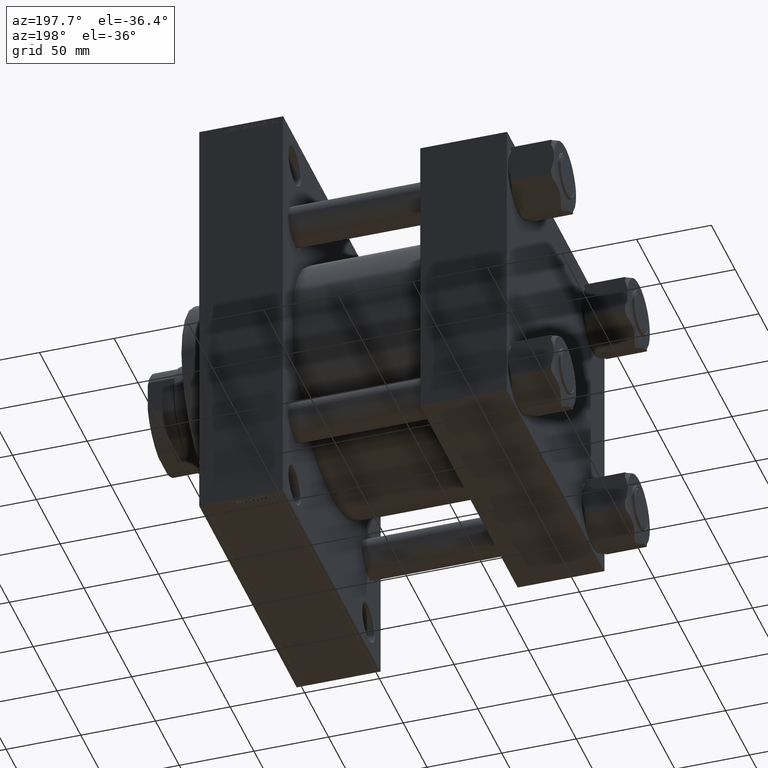
[diagram: clean part render]
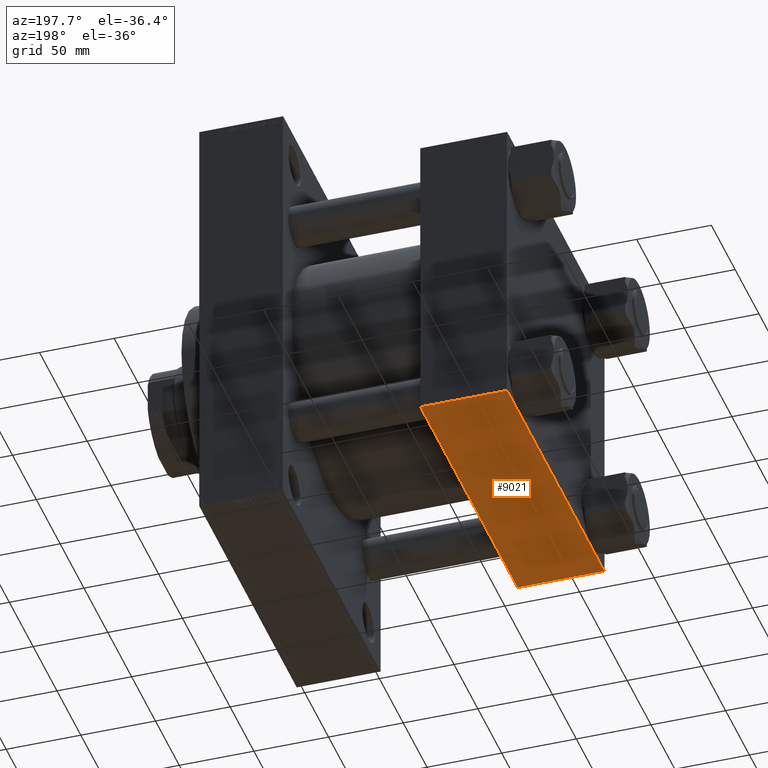
[diagram: same view with one face highlighted and labeled with its STEP entity id]
A machine part, auxiliary view. The second image highlights one B-rep face of the part: STEP entity #9021.
In plain terms, the highlighted planar face has unit normal (0, 0, -1).
Its self-contained STEP definition (entity closure, byte-faithful):
#355 = CARTESIAN_POINT ( 'NONE',  ( 0.000000000000000000, 102.5000000000000000, -102.4999999999999289 ) ) ;
#542 = LINE ( 'NONE', #18409, #35825 ) ;
#624 = VECTOR ( 'NONE', #31894, 1000.000000000000000 ) ;
#2493 = DIRECTION ( 'NONE',  ( 0.000000000000000000, 1.000000000000000000, 2.030895776753335953E-16 ) ) ;
#2579 = EDGE_CURVE ( 'NONE', #11468, #31928, #26985, .T. ) ;
#2819 = AXIS2_PLACEMENT_3D ( 'NONE', #9266, #17213, #2493 ) ;
#5623 = PLANE ( 'NONE',  #2819 ) ;
#6255 = EDGE_CURVE ( 'NONE', #31079, #11468, #542, .T. ) ;
#7542 = DIRECTION ( 'NONE',  ( 1.000000000000000000, 0.000000000000000000, 0.000000000000000000 ) ) ;
#8460 = VERTEX_POINT ( 'NONE', #23111 ) ;
#8671 = CARTESIAN_POINT ( 'NONE',  ( 58.00000000000000000, 102.5000000000000000, -102.4999999999999289 ) ) ;
#9021 = ADVANCED_FACE ( 'NONE', ( #39136 ), #5623, .T. ) ;
#9266 = CARTESIAN_POINT ( 'NONE',  ( 58.00000000000000000, 102.5000000000000000, -102.4999999999999289 ) ) ;
#11468 = VERTEX_POINT ( 'NONE', #37865 ) ;
#11589 = ORIENTED_EDGE ( 'NONE', *, *, #6255, .T. ) ;
#11955 = EDGE_CURVE ( 'NONE', #31928, #8460, #23949, .T. ) ;
#12057 = DIRECTION ( 'NONE',  ( 0.000000000000000000, -1.000000000000000000, -2.030895776753335460E-16 ) ) ;
#16708 = CARTESIAN_POINT ( 'NONE',  ( 0.000000000000000000, -101.9999999999999147, -102.4999999999999716 ) ) ;
#17213 = DIRECTION ( 'NONE',  ( 0.000000000000000000, 2.030895776753335953E-16, -1.000000000000000000 ) ) ;
#18409 = CARTESIAN_POINT ( 'NONE',  ( 58.00000000000000000, 101.9999999999999716, -102.4999999999999289 ) ) ;
#22312 = DIRECTION ( 'NONE',  ( 0.000000000000000000, -1.000000000000000000, -2.030895776753335460E-16 ) ) ;
#23111 = CARTESIAN_POINT ( 'NONE',  ( 0.000000000000000000, -101.9999999999999147, -102.4999999999999716 ) ) ;
#23949 = LINE ( 'NONE', #16708, #624 ) ;
#26363 = ORIENTED_EDGE ( 'NONE', *, *, #38938, .F. ) ;
#26985 = LINE ( 'NONE', #8671, #45710 ) ;
#29950 = VECTOR ( 'NONE', #22312, 1000.000000000000000 ) ;
#31079 = VERTEX_POINT ( 'NONE', #38503 ) ;
#31106 = EDGE_LOOP ( 'NONE', ( #26363, #11589, #38608, #38914 ) ) ;
#31894 = DIRECTION ( 'NONE',  ( -1.000000000000000000, 0.000000000000000000, 0.000000000000000000 ) ) ;
#31928 = VERTEX_POINT ( 'NONE', #38275 ) ;
#35825 = VECTOR ( 'NONE', #7542, 1000.000000000000000 ) ;
#37865 = CARTESIAN_POINT ( 'NONE',  ( 58.00000000000000000, 101.9999999999999716, -102.4999999999999289 ) ) ;
#38275 = CARTESIAN_POINT ( 'NONE',  ( 58.00000000000000000, -101.9999999999999147, -102.4999999999999716 ) ) ;
#38503 = CARTESIAN_POINT ( 'NONE',  ( 0.000000000000000000, 101.9999999999999716, -102.4999999999999289 ) ) ;
#38608 = ORIENTED_EDGE ( 'NONE', *, *, #2579, .T. ) ;
#38914 = ORIENTED_EDGE ( 'NONE', *, *, #11955, .T. ) ;
#38938 = EDGE_CURVE ( 'NONE', #31079, #8460, #44226, .T. ) ;
#39136 = FACE_OUTER_BOUND ( 'NONE', #31106, .T. ) ;
#44226 = LINE ( 'NONE', #355, #29950 ) ;
#45710 = VECTOR ( 'NONE', #12057, 1000.000000000000000 ) ;